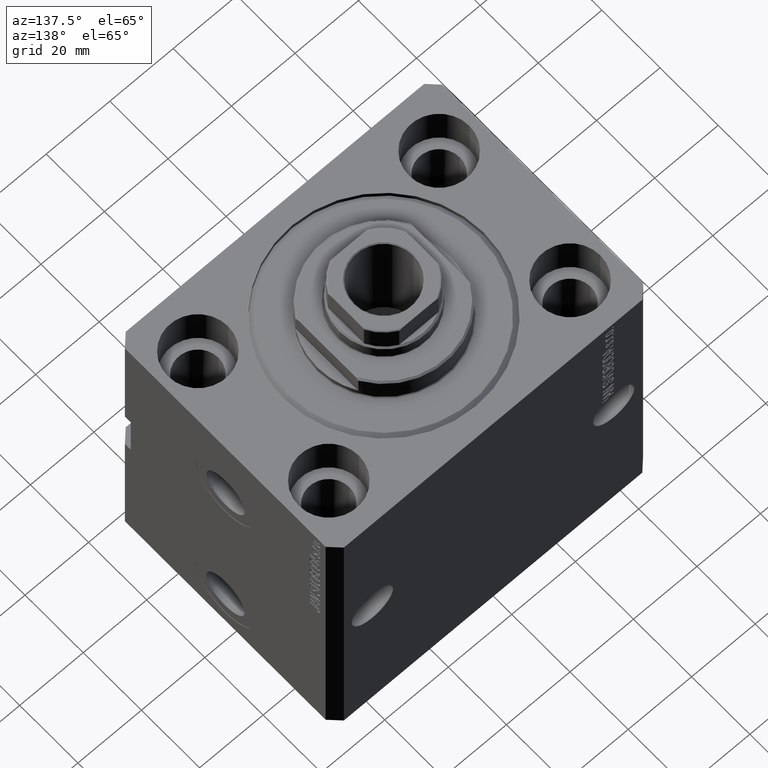
[diagram: clean part render]
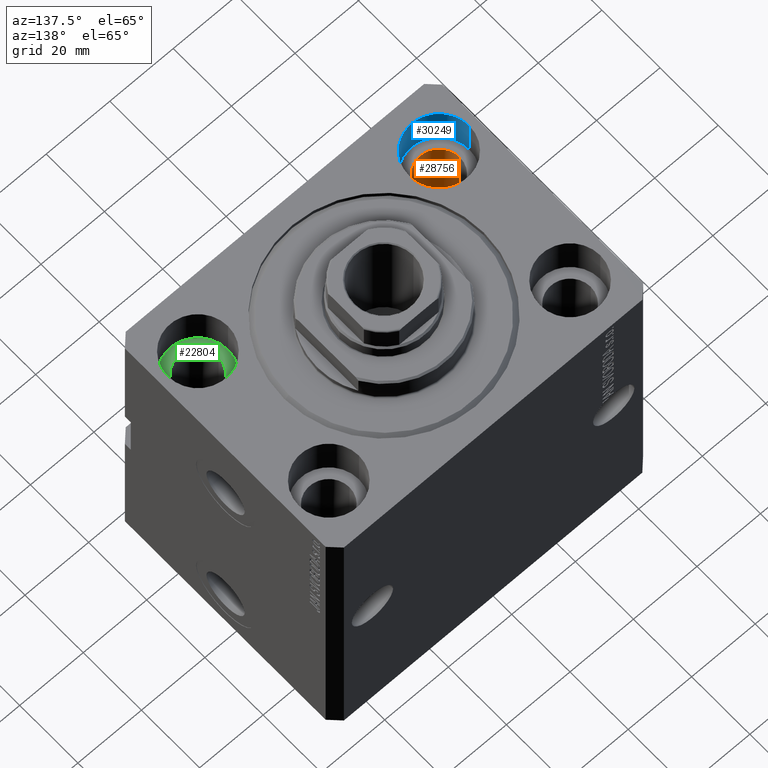
[diagram: same view with three faces highlighted in distinct colors, each labeled with its STEP entity id]
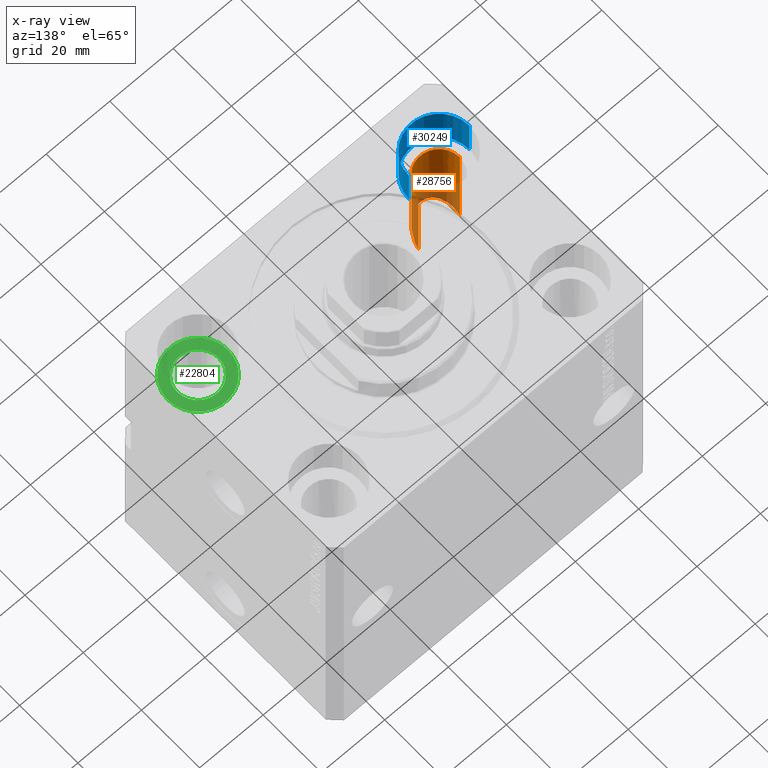
[diagram: x-ray of the same camera — body ghosted, the three highlighted faces saturated]
A machine part, auxiliary view with three faces highlighted in distinct colors.
The next image is the same camera in x-ray (body ghosted, the three faces saturated) — at least one of them is partly hidden behind the body in this view.
Their STEP definitions:

[orange] entity #28756 — the highlighted cylindrical surface (edge-blend (fillet) strip) has radius 6.5 mm, axis along (0, 0, 1).
#852 = ORIENTED_EDGE ( 'NONE', *, *, #31262, .T. ) ;
#1607 = EDGE_CURVE ( 'NONE', #36229, #17296, #32548, .T. ) ;
#2102 =( BOUNDED_CURVE ( )  B_SPLINE_CURVE ( 3, ( #7535, #21148, #4115, #21371 ),
 .UNSPECIFIED., .F., .F. ) 
 B_SPLINE_CURVE_WITH_KNOTS ( ( 4, 4 ),
 ( 4.712388980384689674, 7.853981633974482790 ),
 .UNSPECIFIED. ) 
 CURVE ( )  GEOMETRIC_REPRESENTATION_ITEM ( )  RATIONAL_B_SPLINE_CURVE ( ( 1.000000000000000000, 0.3333333333333333703, 0.3333333333333333703, 1.000000000000000000 ) ) 
 REPRESENTATION_ITEM ( '' )  );
#2491 = CARTESIAN_POINT ( 'NONE',  ( -31.49999999999999289, -22.50000000000000000, -45.00000000000000711 ) ) ;
#3287 = VECTOR ( 'NONE', #27320, 1000.000000000000000 ) ;
#3852 = ORIENTED_EDGE ( 'NONE', *, *, #31203, .T. ) ;
#4115 = CARTESIAN_POINT ( 'NONE',  ( -44.49999999999999289, -35.49999999999999289, -32.00000000000000711 ) ) ;
#5079 = CARTESIAN_POINT ( 'NONE',  ( -44.49999999999999289, -22.50000000000000000, -45.00000000000000711 ) ) ;
#6188 = CARTESIAN_POINT ( 'NONE',  ( -44.50000000000000711, -22.50000000000000000, -95.00000000000000000 ) ) ;
#7535 = CARTESIAN_POINT ( 'NONE',  ( -31.49999999999999289, -22.50000000000000000, -45.00000000000000711 ) ) ;
#8700 = VERTEX_POINT ( 'NONE', #5079 ) ;
#9821 = ORIENTED_EDGE ( 'NONE', *, *, #1607, .T. ) ;
#9833 = DIRECTION ( 'NONE',  ( -0.000000000000000000, -0.000000000000000000, 1.000000000000000000 ) ) ;
#11002 = EDGE_CURVE ( 'NONE', #41782, #17296, #20706, .T. ) ;
#11531 = CARTESIAN_POINT ( 'NONE',  ( -44.50000000000000711, -22.50000000000000000, -13.00000000000000000 ) ) ;
#11972 = ORIENTED_EDGE ( 'NONE', *, *, #11002, .F. ) ;
#14105 = CARTESIAN_POINT ( 'NONE',  ( -31.50000000000000711, -22.50000000000000000, -95.00000000000000000 ) ) ;
#14497 = CARTESIAN_POINT ( 'NONE',  ( -31.50000000000000711, -22.50000000000000000, -13.00000000000000000 ) ) ;
#17296 = VERTEX_POINT ( 'NONE', #14497 ) ;
#17947 = AXIS2_PLACEMENT_3D ( 'NONE', #28368, #25410, #29045 ) ;
#20064 = DIRECTION ( 'NONE',  ( 0.000000000000000000, 0.000000000000000000, 1.000000000000000000 ) ) ;
#20706 = LINE ( 'NONE', #14105, #22631 ) ;
#21148 = CARTESIAN_POINT ( 'NONE',  ( -31.49999999999998579, -35.49999999999999289, -32.00000000000000711 ) ) ;
#21371 = CARTESIAN_POINT ( 'NONE',  ( -44.49999999999999289, -22.50000000000000000, -45.00000000000000711 ) ) ;
#22631 = VECTOR ( 'NONE', #9833, 1000.000000000000000 ) ;
#25410 = DIRECTION ( 'NONE',  ( -0.000000000000000000, -0.000000000000000000, 1.000000000000000000 ) ) ;
#27320 = DIRECTION ( 'NONE',  ( -0.000000000000000000, -0.000000000000000000, 1.000000000000000000 ) ) ;
#28368 = CARTESIAN_POINT ( 'NONE',  ( -38.00000000000000711, -22.50000000000000000, -95.00000000000000000 ) ) ;
#28756 = ADVANCED_FACE ( 'NONE', ( #42435 ), #42888, .F. ) ;
#29045 = DIRECTION ( 'NONE',  ( 1.000000000000000000, 0.000000000000000000, 0.000000000000000000 ) ) ;
#31203 = EDGE_CURVE ( 'NONE', #8700, #36229, #37309, .T. ) ;
#31262 = EDGE_CURVE ( 'NONE', #41782, #8700, #2102, .T. ) ;
#32548 = CIRCLE ( 'NONE', #44151, 6.499999999999999112 ) ;
#35266 = EDGE_LOOP ( 'NONE', ( #852, #3852, #9821, #11972 ) ) ;
#36229 = VERTEX_POINT ( 'NONE', #11531 ) ;
#37309 = LINE ( 'NONE', #6188, #3287 ) ;
#37563 = CARTESIAN_POINT ( 'NONE',  ( -38.00000000000000711, -22.50000000000000000, -13.00000000000000000 ) ) ;
#41782 = VERTEX_POINT ( 'NONE', #2491 ) ;
#42435 = FACE_OUTER_BOUND ( 'NONE', #35266, .T. ) ;
#42888 = CYLINDRICAL_SURFACE ( 'NONE', #17947, 6.499999999999999112 ) ;
#44151 = AXIS2_PLACEMENT_3D ( 'NONE', #37563, #20064, #44169 ) ;
#44169 = DIRECTION ( 'NONE',  ( 1.000000000000000000, 0.000000000000000000, 0.000000000000000000 ) ) ;

[blue] entity #30249 — the highlighted cylindrical surface (partial cylindrical patch) has radius 9.5 mm, axis along (0, 0, 1).
#106 = DIRECTION ( 'NONE',  ( 0.000000000000000000, 0.000000000000000000, 1.000000000000000000 ) ) ;
#323 = DIRECTION ( 'NONE',  ( 1.000000000000000000, 0.000000000000000000, 0.000000000000000000 ) ) ;
#2363 = ORIENTED_EDGE ( 'NONE', *, *, #24684, .F. ) ;
#7579 = CARTESIAN_POINT ( 'NONE',  ( -38.00000000000000711, -22.50000000000000000, -13.00000000000000000 ) ) ;
#8718 = CYLINDRICAL_SURFACE ( 'NONE', #19929, 9.500000000000001776 ) ;
#9206 = CARTESIAN_POINT ( 'NONE',  ( -47.50000000000000711, -22.50000000000000000, -13.00000000000000000 ) ) ;
#9389 = DIRECTION ( 'NONE',  ( -0.000000000000000000, -0.000000000000000000, 1.000000000000000000 ) ) ;
#11108 = CARTESIAN_POINT ( 'NONE',  ( -28.50000000000000355, -22.50000000000000000, -13.00000000000000000 ) ) ;
#12118 = FACE_OUTER_BOUND ( 'NONE', #35000, .T. ) ;
#12588 = LINE ( 'NONE', #9206, #27345 ) ;
#13043 = CARTESIAN_POINT ( 'NONE',  ( -47.50000000000000711, -22.50000000000000000, 0.000000000000000000 ) ) ;
#14595 = DIRECTION ( 'NONE',  ( 0.000000000000000000, 0.000000000000000000, 1.000000000000000000 ) ) ;
#16903 = LINE ( 'NONE', #30783, #35477 ) ;
#18585 = VERTEX_POINT ( 'NONE', #11108 ) ;
#18838 = ORIENTED_EDGE ( 'NONE', *, *, #27388, .T. ) ;
#19929 = AXIS2_PLACEMENT_3D ( 'NONE', #33470, #9389, #33026 ) ;
#19991 = CIRCLE ( 'NONE', #25823, 9.500000000000001776 ) ;
#20496 = VERTEX_POINT ( 'NONE', #24666 ) ;
#23518 = DIRECTION ( 'NONE',  ( -0.000000000000000000, -0.000000000000000000, 1.000000000000000000 ) ) ;
#23534 = CIRCLE ( 'NONE', #35968, 9.500000000000001776 ) ;
#24559 = VERTEX_POINT ( 'NONE', #13043 ) ;
#24666 = CARTESIAN_POINT ( 'NONE',  ( -47.50000000000000711, -22.50000000000000000, -13.00000000000000000 ) ) ;
#24684 = EDGE_CURVE ( 'NONE', #20496, #18585, #19991, .T. ) ;
#25066 = DIRECTION ( 'NONE',  ( 1.000000000000000000, 0.000000000000000000, 0.000000000000000000 ) ) ;
#25694 = CARTESIAN_POINT ( 'NONE',  ( -28.50000000000000355, -22.50000000000000000, 0.000000000000000000 ) ) ;
#25823 = AXIS2_PLACEMENT_3D ( 'NONE', #7579, #14595, #25066 ) ;
#27194 = ORIENTED_EDGE ( 'NONE', *, *, #33125, .T. ) ;
#27345 = VECTOR ( 'NONE', #29420, 1000.000000000000000 ) ;
#27388 = EDGE_CURVE ( 'NONE', #20496, #24559, #12588, .T. ) ;
#28456 = VERTEX_POINT ( 'NONE', #25694 ) ;
#28491 = CARTESIAN_POINT ( 'NONE',  ( -38.00000000000000711, -22.50000000000000000, 0.000000000000000000 ) ) ;
#29420 = DIRECTION ( 'NONE',  ( -0.000000000000000000, -0.000000000000000000, 1.000000000000000000 ) ) ;
#30249 = ADVANCED_FACE ( 'NONE', ( #12118 ), #8718, .F. ) ;
#30783 = CARTESIAN_POINT ( 'NONE',  ( -28.50000000000000355, -22.50000000000000000, -13.00000000000000000 ) ) ;
#33026 = DIRECTION ( 'NONE',  ( 1.000000000000000000, 0.000000000000000000, 0.000000000000000000 ) ) ;
#33125 = EDGE_CURVE ( 'NONE', #24559, #28456, #23534, .T. ) ;
#33470 = CARTESIAN_POINT ( 'NONE',  ( -38.00000000000000711, -22.50000000000000000, -13.00000000000000000 ) ) ;
#35000 = EDGE_LOOP ( 'NONE', ( #2363, #18838, #27194, #36404 ) ) ;
#35477 = VECTOR ( 'NONE', #23518, 1000.000000000000000 ) ;
#35968 = AXIS2_PLACEMENT_3D ( 'NONE', #28491, #106, #323 ) ;
#36404 = ORIENTED_EDGE ( 'NONE', *, *, #44573, .F. ) ;
#44573 = EDGE_CURVE ( 'NONE', #18585, #28456, #16903, .T. ) ;

[green] entity #22804 — the highlighted planar face has unit normal (0, 0, 1).
#1584 = EDGE_LOOP ( 'NONE', ( #4029, #12639 ) ) ;
#1845 = CARTESIAN_POINT ( 'NONE',  ( 38.00000000000000711, -22.50000000000000000, -13.00000000000000000 ) ) ;
#2063 = PLANE ( 'NONE',  #4764 ) ;
#2434 = CIRCLE ( 'NONE', #3150, 9.500000000000001776 ) ;
#3150 = AXIS2_PLACEMENT_3D ( 'NONE', #41459, #40569, #12863 ) ;
#4029 = ORIENTED_EDGE ( 'NONE', *, *, #13567, .T. ) ;
#4468 = DIRECTION ( 'NONE',  ( 1.000000000000000000, 0.000000000000000000, 0.000000000000000000 ) ) ;
#4764 = AXIS2_PLACEMENT_3D ( 'NONE', #1845, #15246, #32532 ) ;
#5050 = VERTEX_POINT ( 'NONE', #21964 ) ;
#6385 = VERTEX_POINT ( 'NONE', #43191 ) ;
#6547 = DIRECTION ( 'NONE',  ( 1.000000000000000000, 0.000000000000000000, 0.000000000000000000 ) ) ;
#7074 = VERTEX_POINT ( 'NONE', #11382 ) ;
#8115 = AXIS2_PLACEMENT_3D ( 'NONE', #44037, #33823, #6547 ) ;
#9562 = ORIENTED_EDGE ( 'NONE', *, *, #36196, .F. ) ;
#11321 = EDGE_CURVE ( 'NONE', #7074, #5050, #16107, .T. ) ;
#11382 = CARTESIAN_POINT ( 'NONE',  ( 31.50000000000000711, -22.50000000000000000, -13.00000000000000000 ) ) ;
#11636 = EDGE_CURVE ( 'NONE', #6385, #33175, #16844, .T. ) ;
#12639 = ORIENTED_EDGE ( 'NONE', *, *, #11636, .T. ) ;
#12863 = DIRECTION ( 'NONE',  ( 1.000000000000000000, 0.000000000000000000, 0.000000000000000000 ) ) ;
#13223 = AXIS2_PLACEMENT_3D ( 'NONE', #22853, #15575, #4468 ) ;
#13567 = EDGE_CURVE ( 'NONE', #33175, #6385, #2434, .T. ) ;
#14468 = CARTESIAN_POINT ( 'NONE',  ( 38.00000000000000711, -22.50000000000000000, -13.00000000000000000 ) ) ;
#15246 = DIRECTION ( 'NONE',  ( 0.000000000000000000, 0.000000000000000000, 1.000000000000000000 ) ) ;
#15575 = DIRECTION ( 'NONE',  ( 0.000000000000000000, 0.000000000000000000, 1.000000000000000000 ) ) ;
#16107 = CIRCLE ( 'NONE', #8115, 6.499999999999999112 ) ;
#16844 = CIRCLE ( 'NONE', #13223, 9.500000000000001776 ) ;
#19004 = ORIENTED_EDGE ( 'NONE', *, *, #11321, .F. ) ;
#20916 = EDGE_LOOP ( 'NONE', ( #9562, #19004 ) ) ;
#21964 = CARTESIAN_POINT ( 'NONE',  ( 44.50000000000000711, -22.50000000000000000, -13.00000000000000000 ) ) ;
#22804 = ADVANCED_FACE ( 'NONE', ( #32755, #32981 ), #2063, .T. ) ;
#22853 = CARTESIAN_POINT ( 'NONE',  ( 38.00000000000000711, -22.50000000000000000, -13.00000000000000000 ) ) ;
#24486 = DIRECTION ( 'NONE',  ( 1.000000000000000000, 0.000000000000000000, 0.000000000000000000 ) ) ;
#24849 = CARTESIAN_POINT ( 'NONE',  ( 47.50000000000000711, -22.50000000000000000, -13.00000000000000000 ) ) ;
#27278 = AXIS2_PLACEMENT_3D ( 'NONE', #14468, #28350, #24486 ) ;
#28350 = DIRECTION ( 'NONE',  ( 0.000000000000000000, 0.000000000000000000, 1.000000000000000000 ) ) ;
#32532 = DIRECTION ( 'NONE',  ( 1.000000000000000000, 0.000000000000000000, -0.000000000000000000 ) ) ;
#32755 = FACE_BOUND ( 'NONE', #20916, .T. ) ;
#32981 = FACE_OUTER_BOUND ( 'NONE', #1584, .T. ) ;
#33175 = VERTEX_POINT ( 'NONE', #24849 ) ;
#33823 = DIRECTION ( 'NONE',  ( 0.000000000000000000, 0.000000000000000000, 1.000000000000000000 ) ) ;
#36196 = EDGE_CURVE ( 'NONE', #5050, #7074, #36698, .T. ) ;
#36698 = CIRCLE ( 'NONE', #27278, 6.499999999999999112 ) ;
#40569 = DIRECTION ( 'NONE',  ( 0.000000000000000000, 0.000000000000000000, 1.000000000000000000 ) ) ;
#41459 = CARTESIAN_POINT ( 'NONE',  ( 38.00000000000000711, -22.50000000000000000, -13.00000000000000000 ) ) ;
#43191 = CARTESIAN_POINT ( 'NONE',  ( 28.50000000000000355, -22.50000000000000000, -13.00000000000000000 ) ) ;
#44037 = CARTESIAN_POINT ( 'NONE',  ( 38.00000000000000711, -22.50000000000000000, -13.00000000000000000 ) ) ;